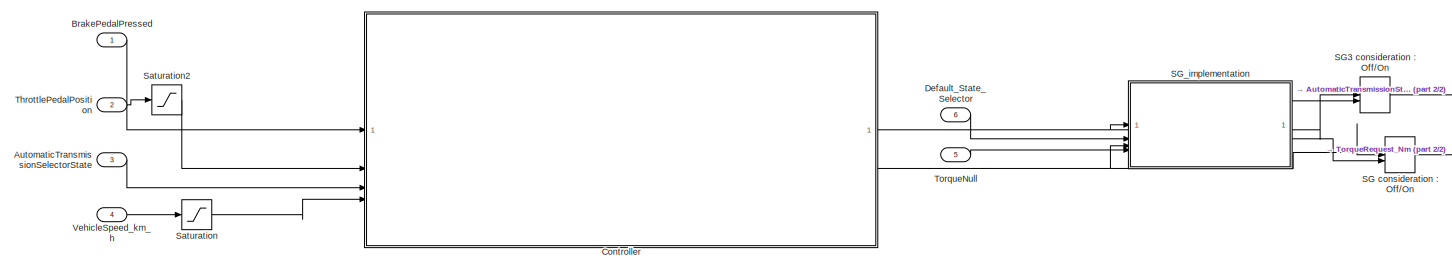
[diagram: root canvas - part 1/2, most of the canvas]
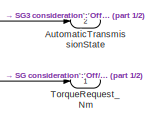
[diagram: root canvas - part 2/2, middle right region]
MODEL slx_4266ddb8e1cb
KIND model
CONFIG AbsTol = auto
CONFIG EnableMultiTasking = off
CONFIG FixedStep = 1/100
CONFIG MaxStep = auto
CONFIG MinStep = auto
CONFIG RelTol = 1e-3
CONFIG SampleTimeConstraint = Unconstrained
CONFIG SolverName = FixedStepAuto
CONFIG StartTime = 0.0
CONFIG StopTime = 10.0
BLOCK [Inport] AutomaticTransmissionSelectorState
  OutDataTypeStr = Enum: TransmissionState
  Port = 3
BLOCK [Outport] AutomaticTransmissionState
  OutDataTypeStr = Enum: TransmissionState
  Port = 2
BLOCK [Inport] BrakePedalPressed
  OutDataTypeStr = boolean
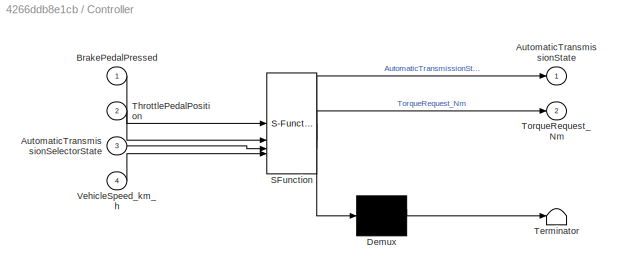
BLOCK [SubSystem] Controller
  ErrorFcn = Stateflow.Translate.translate
  PermitHierarchicalResolution = ExplicitOnly
  SFBlockType = Chart
  TreatAsAtomicUnit = on
BLOCK [Demux] Controller/ Demux 
  Outputs = 1
BLOCK [S-Function] Controller/ SFunction 
  EnableBusSupport = on
  FunctionName = sf_sfun
  Parameters = MAX_TORQUE,MAX_TORQUE_REVERSE
  PortCounts = [4 3]
  SFcnIsStateOwnerBlock = off
  SFunctionDeploymentMode = off
  Tag = Stateflow S-Function 3
BLOCK [Terminator] Controller/ Terminator 
BLOCK [Inport] Controller/AutomaticTransmissionSelectorState
  Port = 3
BLOCK [Outport] Controller/AutomaticTransmissionState
BLOCK [Inport] Controller/BrakePedalPressed
BLOCK [Inport] Controller/ThrottlePedalPosition
  Port = 2
BLOCK [Outport] Controller/TorqueRequest_Nm
  Port = 2
BLOCK [Inport] Controller/VehicleSpeed_km_h
  Port = 4
BLOCK [Inport] Default_State_Selector
  Port = 6
BLOCK [ManualSwitch] SG consideration : Off//On
  CurrentSetting = 0
BLOCK [ManualSwitch] SG3 consideration : Off//On
  CurrentSetting = 0
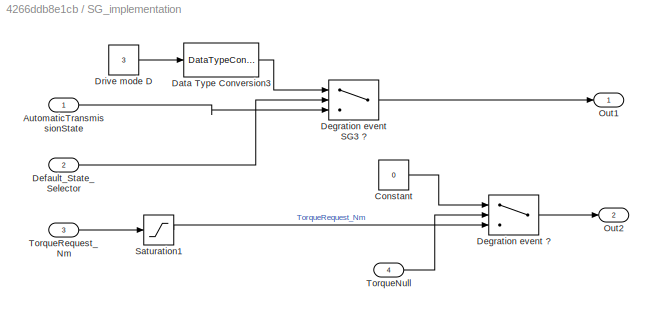
BLOCK [SubSystem] SG_implementation
BLOCK [Inport] SG_implementation/AutomaticTransmissionState
BLOCK [Constant] SG_implementation/Constant
  OutDataTypeStr = single
  Value = 0
BLOCK [DataTypeConversion] SG_implementation/Data Type Conversion3
  LockScale = on
  OutDataTypeStr = Enum: TransmissionState
  RndMeth = Floor
  SaturateOnIntegerOverflow = off
BLOCK [Inport] SG_implementation/Default_State_Selector
  Port = 2
BLOCK [Switch] SG_implementation/Degration event  SG3 ?
  Criteria = u2 > Threshold
  InputSameDT = off
  SaturateOnIntegerOverflow = off
BLOCK [Switch] SG_implementation/Degration event ?
  Criteria = u2 > Threshold
  InputSameDT = off
  SaturateOnIntegerOverflow = off
BLOCK [Constant] SG_implementation/Drive mode D
  OutDataTypeStr = int32
  Value = 3
BLOCK [Outport] SG_implementation/Out1
BLOCK [Outport] SG_implementation/Out2
  Port = 2
BLOCK [Saturate] SG_implementation/Saturation1
  LowerLimit = -MAX_TORQUE_REVERSE
  UpperLimit = MAX_TORQUE
BLOCK [Inport] SG_implementation/TorqueNull
  Port = 4
BLOCK [Inport] SG_implementation/TorqueRequest_Nm
  Port = 3
BLOCK [Saturate] Saturation
  LowerLimit = -MAX_SPEED_BACKWARD
  UpperLimit = MAX_SPEED_FORWARD
BLOCK [Saturate] Saturation2
  LowerLimit = 0
  UpperLimit = 1
BLOCK [Inport] ThrottlePedalPosition
  OutDataTypeStr = single
  Port = 2
BLOCK [Inport] TorqueNull
  Port = 5
BLOCK [Outport] TorqueRequest_Nm
  OutDataTypeStr = single
  Unit = N*m
BLOCK [Inport] VehicleSpeed_km_h
  OutDataTypeStr = single
  Port = 4
  Unit = km/h
LINE AutomaticTransmissionSelectorState:1 -> Controller:3
LINE BrakePedalPressed:1 -> Controller:1
NET Controller:1 -> SG3 consideration : Off//On:1, SG_implementation:1
NET Controller:2 -> SG consideration : Off//On:1, SG_implementation:3
LINE Default_State_Selector:1 -> SG_implementation:2
LINE SG consideration : Off//On:1 -> TorqueRequest_Nm:1
LINE SG3 consideration : Off//On:1 -> AutomaticTransmissionState:1
LINE SG_implementation/AutomaticTransmissionState:1 -> SG_implementation/Degration event  SG3 ?:3
LINE SG_implementation/Constant:1 -> SG_implementation/Degration event ?:1
LINE SG_implementation/Data Type Conversion3:1 -> SG_implementation/Degration event  SG3 ?:1
LINE SG_implementation/Default_State_Selector:1 -> SG_implementation/Degration event  SG3 ?:2
LINE SG_implementation/Degration event  SG3 ?:1 -> SG_implementation/Out1:1
LINE SG_implementation/Degration event ?:1 -> SG_implementation/Out2:1
LINE SG_implementation/Drive mode D:1 -> SG_implementation/Data Type Conversion3:1
LINE SG_implementation/Saturation1:1 -> SG_implementation/Degration event ?:3
LINE SG_implementation/TorqueNull:1 -> SG_implementation/Degration event ?:2
LINE SG_implementation/TorqueRequest_Nm:1 -> SG_implementation/Saturation1:1
LINE SG_implementation:1 -> SG3 consideration : Off//On:2
LINE SG_implementation:2 -> SG consideration : Off//On:2
LINE Saturation2:1 -> Controller:2
LINE Saturation:1 -> Controller:4
LINE ThrottlePedalPosition:1 -> Saturation2:1
LINE TorqueNull:1 -> SG_implementation:4
LINE VehicleSpeed_km_h:1 -> Saturation:1
note: NET lines group one-source signal fan-out (src -> all destinations, sorted); 1:1 wires keep LINE
CHART Controller states=8 transitions=19
  STATE_LABEL 'P\nen: AutomaticTransmissionState = TransmissionState.Park;\nexit: TorqueRequest_Nm = 0;\n'
  STATE_LABEL 'B\nentry:\nAutomaticTransmissionState = TransmissionState.Brake;\n'
  STATE_LABEL 'Acceleration\nexit:\nTorqueRequest_Nm = MAX_TORQUE*(ThrottlePedalPosition-1/3)*(3/2)\n'
  STATE_LABEL 'Stopped\n\nTorqueRequest_Nm= -VehicleSpeed_km_h*50;\n'
  STATE_LABEL 'Braking\nexit:\nTorqueRequest_Nm = -(MAX_TORQUE_REVERSE*(1-(ThrottlePedalPosition*3)))'
  STATE_LABEL '[ThrottlePedalPosition > 1/3]'
  STATE_LABEL '[AutomaticTransmissionSelectorState==TransmissionState.Brake]'
  STATE_LABEL '[ThrottlePedalPosition > 1/3]'
  STATE_LABEL '[ThrottlePedalPosition <= 1/3]'
  STATE_LABEL '[ThrottlePedalPosition <=0]'
  STATE_LABEL '[VehicleSpeed_km_h > 0]'
  STATE_LABEL '[AutomaticTransmissionSelectorState==TransmissionState.Brake && VehicleSpeed_km_h >0]'
  STATE_LABEL 'Acceleration\nexit:\nTorqueRequest_Nm = MAX_TORQUE*(ThrottlePedalPosition-1/3)*(3/2)\n'
  STATE_LABEL 'Stopped\n\nTorqueRequest_Nm= -VehicleSpeed_km_h*50;\n'
  STATE_LABEL 'Braking\nexit:\nTorqueRequest_Nm = -(MAX_TORQUE_REVERSE*(1-(ThrottlePedalPosition*3)))'
  STATE_LABEL 'R\nentry:\nAutomaticTransmissionState = TransmissionState.Reverse;\nexit:\nTorqueRequest_Nm = -(MAX_TORQUE_REVERSE*ThrottlePedalPosition)\n'
  STATE_LABEL 'D\nentry:\nAutomaticTransmissionState = TransmissionState.Drive;\nexit:\nTorqueRequest_Nm = MAX_TORQUE*ThrottlePedalPosition;\n'
  STATE_LABEL 'N\nentry:\nAutomaticTransmissionState = TransmissionState.Neutral;\nexit:\nTorqueRequest_Nm = 0;\n'
CHART  states=0 transitions=0
